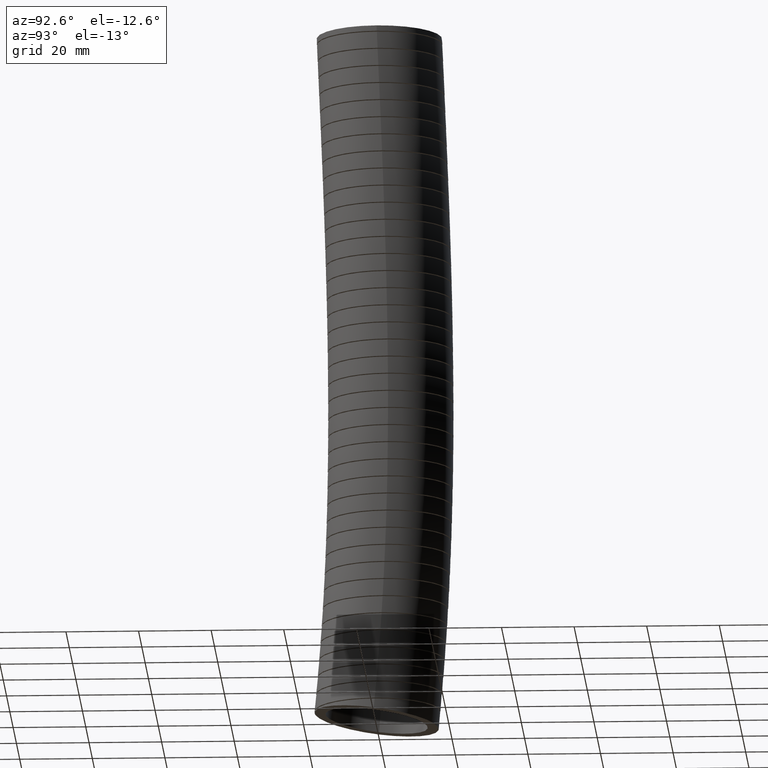
[diagram: clean part render]
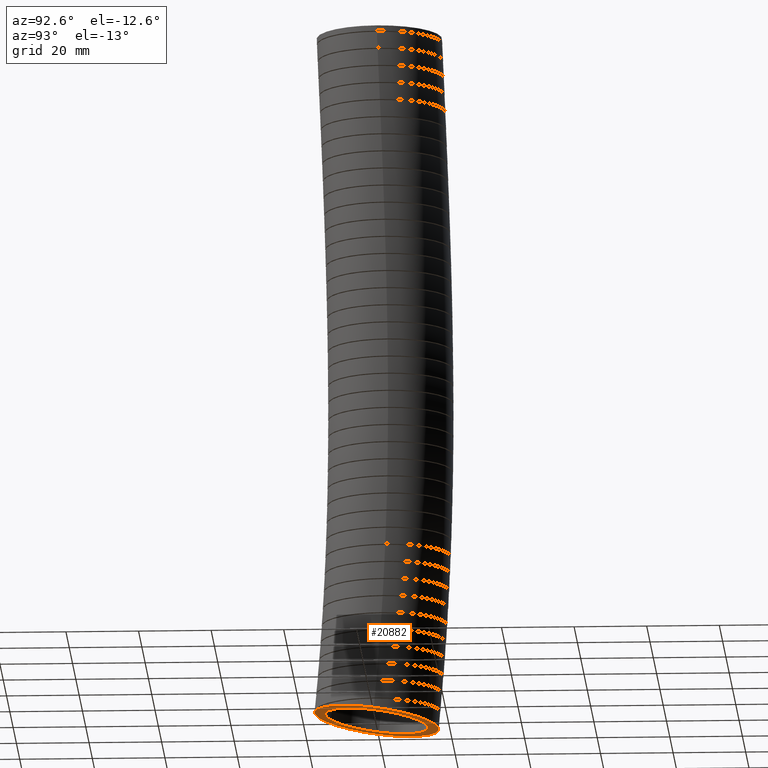
[diagram: same view with one face highlighted and labeled with its STEP entity id]
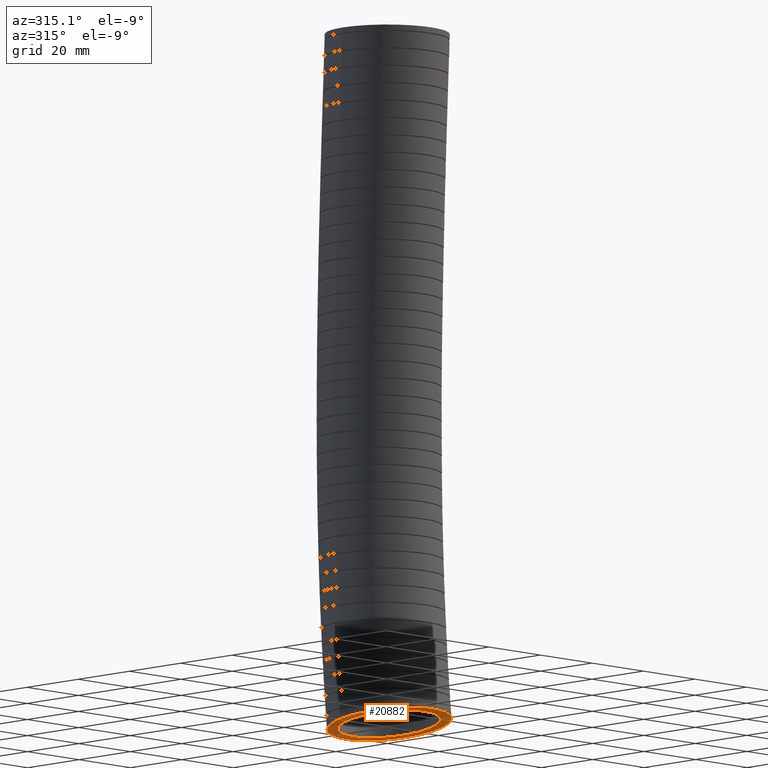
[diagram: same view with one face highlighted and labeled with its STEP entity id]
A machine part, auxiliary view. The second image highlights one B-rep face of the part: STEP entity #20882.
A second angle (auxiliary view) of the same face is appended — the face is thin or edge-on in the first view.
In plain terms, the highlighted planar face has unit normal (0, 0.135, 0.9909).
Its self-contained STEP definition (entity closure, byte-faithful):
#3938 = FACE_OUTER_BOUND ( 'NONE', #20588, .T. ) ;
#3939 = FACE_BOUND ( 'NONE', #20878, .T. ) ;
#3940 = DIRECTION ( 'NONE',  ( 1.000000000000000000, 0.0000000000000000000, 0.0000000000000000000 ) ) ;
#3941 = DIRECTION ( 'NONE',  ( 0.0000000000000000000, 0.1349512189538165900, 0.9908522435271967000 ) ) ;
#3942 = CARTESIAN_POINT ( 'NONE',  ( 0.0000000000000000000, -0.02999999999999998800, -7.570000000000000300 ) ) ;
#3943 = AXIS2_PLACEMENT_3D ( 'NONE', #3942, #3941, #3940 ) ;
#3944 = CIRCLE ( 'NONE', #3943, 0.5599999999999999400 ) ;
#3984 = DIRECTION ( 'NONE',  ( 1.000000000000000000, 0.0000000000000000000, 0.0000000000000000000 ) ) ;
#3985 = DIRECTION ( 'NONE',  ( 0.0000000000000000000, 0.1349512189538165700, 0.9908522435271967000 ) ) ;
#3986 = CARTESIAN_POINT ( 'NONE',  ( 0.0000000000000000000, -0.02999999999999998800, -7.570000000000000300 ) ) ;
#3987 = AXIS2_PLACEMENT_3D ( 'NONE', #3986, #3985, #3984 ) ;
#3988 = PLANE ( 'NONE',  #3987 ) ;
#4183 = VERTEX_POINT ( 'NONE', #15300 ) ;
#4440 = EDGE_CURVE ( 'NONE', #4183, #4441, #18590, .T. ) ;
#4441 = VERTEX_POINT ( 'NONE', #18592 ) ;
#4462 = EDGE_CURVE ( 'NONE', #4441, #4183, #19057, .T. ) ;
#4534 = VERTEX_POINT ( 'NONE', #7374 ) ;
#4639 = VERTEX_POINT ( 'NONE', #8545 ) ;
#4884 = EDGE_CURVE ( 'NONE', #4534, #4639, #9503, .T. ) ;
#7374 = CARTESIAN_POINT ( 'NONE',  ( 0.5599999999999999400, -0.02999999999999998800, -7.570000000000000300 ) ) ;
#8545 = CARTESIAN_POINT ( 'NONE',  ( -0.5600000000000000500, -0.02999999999999995700, -7.570000000000000300 ) ) ;
#9499 = DIRECTION ( 'NONE',  ( 1.000000000000000000, 0.0000000000000000000, 0.0000000000000000000 ) ) ;
#9500 = DIRECTION ( 'NONE',  ( 0.0000000000000000000, 0.1349512189538165900, 0.9908522435271967000 ) ) ;
#9501 = CARTESIAN_POINT ( 'NONE',  ( 0.0000000000000000000, -0.02999999999999998800, -7.570000000000000300 ) ) ;
#9502 = AXIS2_PLACEMENT_3D ( 'NONE', #9501, #9500, #9499 ) ;
#9503 = CIRCLE ( 'NONE', #9502, 0.5599999999999999400 ) ;
#15300 = CARTESIAN_POINT ( 'NONE',  ( -0.6799999999999999400, -0.02999999999999994300, -7.570000000000000300 ) ) ;
#18585 = DIRECTION ( 'NONE',  ( 1.000000000000000000, 0.0000000000000000000, 0.0000000000000000000 ) ) ;
#18587 = DIRECTION ( 'NONE',  ( 0.0000000000000000000, 0.1349512189538165900, 0.9908522435271967000 ) ) ;
#18589 = AXIS2_PLACEMENT_3D ( 'NONE', #18597, #18587, #18585 ) ;
#18590 = CIRCLE ( 'NONE', #18589, 0.6799999999999998300 ) ;
#18592 = CARTESIAN_POINT ( 'NONE',  ( 0.6799999999999998300, -0.02999999999999998800, -7.570000000000000300 ) ) ;
#18597 = CARTESIAN_POINT ( 'NONE',  ( 0.0000000000000000000, -0.02999999999999998800, -7.570000000000000300 ) ) ;
#19052 = DIRECTION ( 'NONE',  ( 1.000000000000000000, 0.0000000000000000000, 0.0000000000000000000 ) ) ;
#19053 = DIRECTION ( 'NONE',  ( 0.0000000000000000000, 0.1349512189538165900, 0.9908522435271967000 ) ) ;
#19054 = CARTESIAN_POINT ( 'NONE',  ( 0.0000000000000000000, -0.02999999999999998800, -7.570000000000000300 ) ) ;
#19056 = AXIS2_PLACEMENT_3D ( 'NONE', #19054, #19053, #19052 ) ;
#19057 = CIRCLE ( 'NONE', #19056, 0.6799999999999998300 ) ;
#20106 = ORIENTED_EDGE ( 'NONE', *, *, #4440, .F. ) ;
#20361 = ORIENTED_EDGE ( 'NONE', *, *, #20635, .T. ) ;
#20365 = ORIENTED_EDGE ( 'NONE', *, *, #4462, .F. ) ;
#20588 = EDGE_LOOP ( 'NONE', ( #20365, #20106 ) ) ;
#20635 = EDGE_CURVE ( 'NONE', #4639, #4534, #3944, .T. ) ;
#20754 = ORIENTED_EDGE ( 'NONE', *, *, #4884, .T. ) ;
#20878 = EDGE_LOOP ( 'NONE', ( #20754, #20361 ) ) ;
#20882 = ADVANCED_FACE ( 'NONE', ( #3939, #3938 ), #3988, .F. ) ;